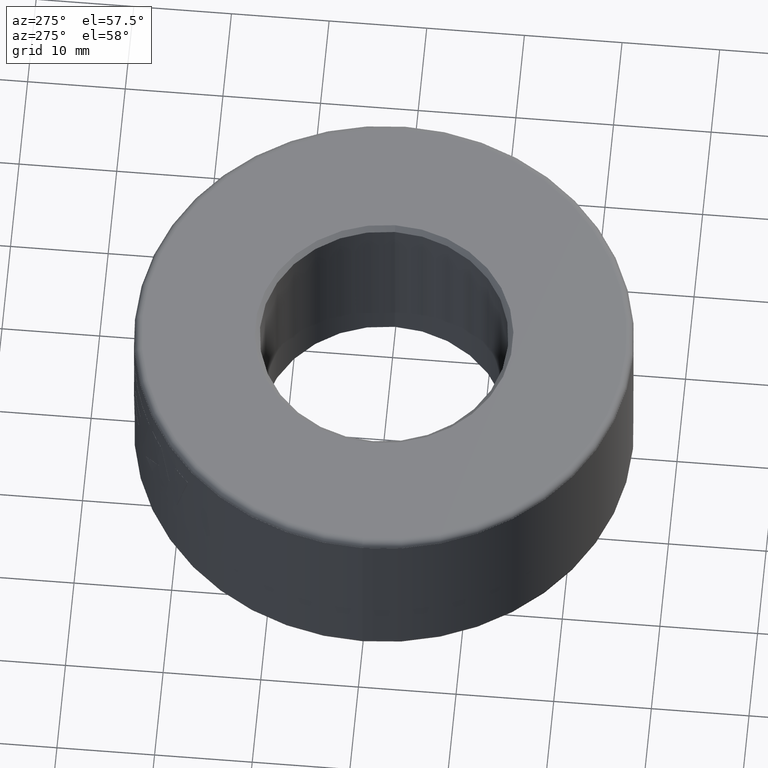
[diagram: clean part render]
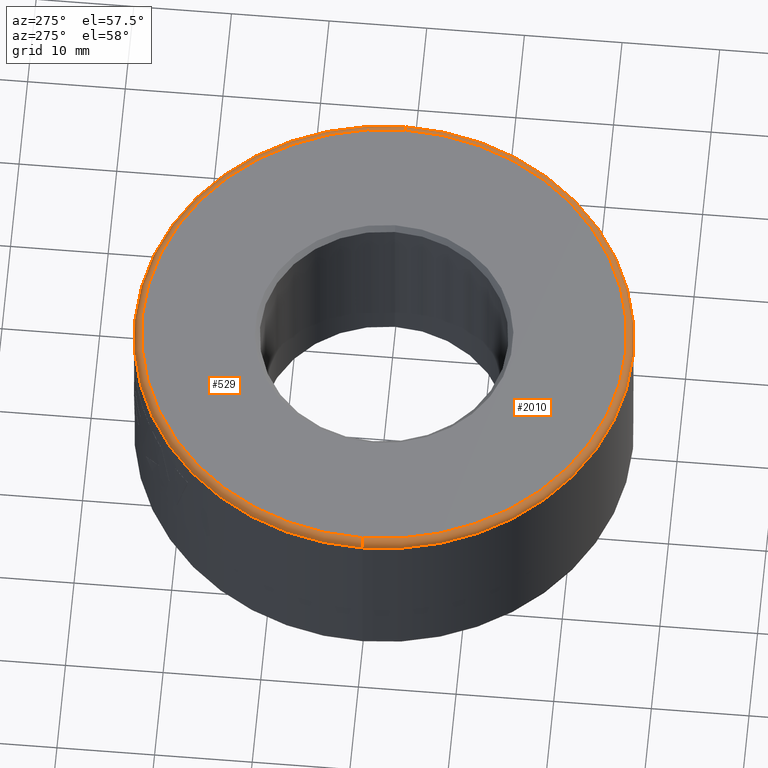
[diagram: same view with one multi-face feature highlighted, each face labeled with its STEP entity id]
A machine part, auxiliary view. The highlighted faces form ONE feature: a constant-radius fillet chain: 2 tangent blend faces with common blend radius 0.75 mm. The faces share edges in the B-rep.
Their STEP definitions:
[1] entity #529 (Torus):
#97 = AXIS2_PLACEMENT_3D ( 'NONE', #2151, #1485, #1093 ) ;
#201 = ORIENTED_EDGE ( 'NONE', *, *, #1541, .F. ) ;
#230 = ORIENTED_EDGE ( 'NONE', *, *, #1402, .F. ) ;
#299 = DIRECTION ( 'NONE',  ( 0.0000000000000000000, -1.000000000000000000, 0.0000000000000000000 ) ) ;
#529 = ADVANCED_FACE ( 'NONE', ( #2256 ), #2658, .T. ) ;
#733 = VERTEX_POINT ( 'NONE', #1944 ) ;
#757 = DIRECTION ( 'NONE',  ( 0.0000000000000000000, 0.0000000000000000000, 1.000000000000000000 ) ) ;
#828 = VERTEX_POINT ( 'NONE', #1593 ) ;
#864 = CIRCLE ( 'NONE', #1671, 0.7500000000000006700 ) ;
#957 = CARTESIAN_POINT ( 'NONE',  ( 0.0000000000000000000, 0.0000000000000000000, 8.749999999999998200 ) ) ;
#979 = DIRECTION ( 'NONE',  ( 1.000000000000000000, 0.0000000000000000000, 0.0000000000000000000 ) ) ;
#1093 = DIRECTION ( 'NONE',  ( 1.000000000000000000, 0.0000000000000000000, 0.0000000000000000000 ) ) ;
#1395 = AXIS2_PLACEMENT_3D ( 'NONE', #2606, #1542, #1963 ) ;
#1402 = EDGE_CURVE ( 'NONE', #2620, #1819, #2640, .T. ) ;
#1407 = ORIENTED_EDGE ( 'NONE', *, *, #2332, .F. ) ;
#1477 = DIRECTION ( 'NONE',  ( 1.224646799147353200E-016, 1.000000000000000000, -0.0000000000000000000 ) ) ;
#1485 = DIRECTION ( 'NONE',  ( 0.0000000000000000000, 0.0000000000000000000, 1.000000000000000000 ) ) ;
#1541 = EDGE_CURVE ( 'NONE', #733, #828, #2032, .T. ) ;
#1542 = DIRECTION ( 'NONE',  ( -0.0000000000000000000, -0.0000000000000000000, -1.000000000000000000 ) ) ;
#1588 = CARTESIAN_POINT ( 'NONE',  ( 24.74999999999999600, 0.0000000000000000000, 8.749999999999998200 ) ) ;
#1593 = CARTESIAN_POINT ( 'NONE',  ( 25.50000000000000000, 0.0000000000000000000, 8.749999999999998200 ) ) ;
#1634 = CARTESIAN_POINT ( 'NONE',  ( 24.74999999999999600, 0.0000000000000000000, 9.500000000000000000 ) ) ;
#1671 = AXIS2_PLACEMENT_3D ( 'NONE', #1588, #299, #2049 ) ;
#1819 = VERTEX_POINT ( 'NONE', #2537 ) ;
#1849 = CARTESIAN_POINT ( 'NONE',  ( -24.74999999999999600, 3.031000827889698900E-015, 8.749999999999998200 ) ) ;
#1944 = CARTESIAN_POINT ( 'NONE',  ( -25.50000000000000000, 3.122849337825750600E-015, 8.749999999999998200 ) ) ;
#1963 = DIRECTION ( 'NONE',  ( 1.000000000000000000, 0.0000000000000000000, 0.0000000000000000000 ) ) ;
#1992 = DIRECTION ( 'NONE',  ( -1.000000000000000000, 1.224646799147354400E-016, 0.0000000000000000000 ) ) ;
#2032 = CIRCLE ( 'NONE', #1395, 25.50000000000000000 ) ;
#2049 = DIRECTION ( 'NONE',  ( 0.0000000000000000000, 0.0000000000000000000, -1.000000000000000000 ) ) ;
#2151 = CARTESIAN_POINT ( 'NONE',  ( 0.0000000000000000000, 0.0000000000000000000, 9.500000000000000000 ) ) ;
#2213 = EDGE_CURVE ( 'NONE', #733, #1819, #2638, .T. ) ;
#2256 = FACE_OUTER_BOUND ( 'NONE', #2543, .T. ) ;
#2332 = EDGE_CURVE ( 'NONE', #828, #2620, #864, .T. ) ;
#2372 = AXIS2_PLACEMENT_3D ( 'NONE', #957, #757, #979 ) ;
#2537 = CARTESIAN_POINT ( 'NONE',  ( -24.74999999999999600, 3.076925082857724500E-015, 9.500000000000000000 ) ) ;
#2543 = EDGE_LOOP ( 'NONE', ( #201, #2769, #230, #1407 ) ) ;
#2606 = CARTESIAN_POINT ( 'NONE',  ( 0.0000000000000000000, 0.0000000000000000000, 8.749999999999998200 ) ) ;
#2620 = VERTEX_POINT ( 'NONE', #1634 ) ;
#2638 = CIRCLE ( 'NONE', #2725, 0.7500000000000006700 ) ;
#2640 = CIRCLE ( 'NONE', #97, 24.74999999999999600 ) ;
#2658 = TOROIDAL_SURFACE ( 'NONE', #2372, 24.74999999999999600, 0.7500000000000000000 ) ;
#2725 = AXIS2_PLACEMENT_3D ( 'NONE', #1849, #1477, #1992 ) ;
#2769 = ORIENTED_EDGE ( 'NONE', *, *, #2213, .T. ) ;
[2] entity #2010 (Torus):
#299 = DIRECTION ( 'NONE',  ( 0.0000000000000000000, -1.000000000000000000, 0.0000000000000000000 ) ) ;
#733 = VERTEX_POINT ( 'NONE', #1944 ) ;
#792 = DIRECTION ( 'NONE',  ( -0.0000000000000000000, -0.0000000000000000000, -1.000000000000000000 ) ) ;
#828 = VERTEX_POINT ( 'NONE', #1593 ) ;
#836 = CIRCLE ( 'NONE', #1297, 25.50000000000000000 ) ;
#864 = CIRCLE ( 'NONE', #1671, 0.7500000000000006700 ) ;
#891 = TOROIDAL_SURFACE ( 'NONE', #1416, 24.74999999999999600, 0.7500000000000000000 ) ;
#949 = EDGE_LOOP ( 'NONE', ( #1364, #1076, #1224, #2400 ) ) ;
#971 = CARTESIAN_POINT ( 'NONE',  ( 0.0000000000000000000, 0.0000000000000000000, 9.500000000000000000 ) ) ;
#1076 = ORIENTED_EDGE ( 'NONE', *, *, #1817, .F. ) ;
#1095 = FACE_OUTER_BOUND ( 'NONE', #949, .T. ) ;
#1124 = CIRCLE ( 'NONE', #1141, 24.74999999999999600 ) ;
#1141 = AXIS2_PLACEMENT_3D ( 'NONE', #971, #1418, #1175 ) ;
#1175 = DIRECTION ( 'NONE',  ( 1.000000000000000000, 0.0000000000000000000, 0.0000000000000000000 ) ) ;
#1198 = EDGE_CURVE ( 'NONE', #1819, #2620, #1124, .T. ) ;
#1224 = ORIENTED_EDGE ( 'NONE', *, *, #2332, .T. ) ;
#1297 = AXIS2_PLACEMENT_3D ( 'NONE', #1459, #792, #2068 ) ;
#1364 = ORIENTED_EDGE ( 'NONE', *, *, #2213, .F. ) ;
#1416 = AXIS2_PLACEMENT_3D ( 'NONE', #2363, #2556, #2216 ) ;
#1418 = DIRECTION ( 'NONE',  ( 0.0000000000000000000, 0.0000000000000000000, 1.000000000000000000 ) ) ;
#1459 = CARTESIAN_POINT ( 'NONE',  ( 0.0000000000000000000, 0.0000000000000000000, 8.749999999999998200 ) ) ;
#1477 = DIRECTION ( 'NONE',  ( 1.224646799147353200E-016, 1.000000000000000000, -0.0000000000000000000 ) ) ;
#1588 = CARTESIAN_POINT ( 'NONE',  ( 24.74999999999999600, 0.0000000000000000000, 8.749999999999998200 ) ) ;
#1593 = CARTESIAN_POINT ( 'NONE',  ( 25.50000000000000000, 0.0000000000000000000, 8.749999999999998200 ) ) ;
#1634 = CARTESIAN_POINT ( 'NONE',  ( 24.74999999999999600, 0.0000000000000000000, 9.500000000000000000 ) ) ;
#1671 = AXIS2_PLACEMENT_3D ( 'NONE', #1588, #299, #2049 ) ;
#1817 = EDGE_CURVE ( 'NONE', #828, #733, #836, .T. ) ;
#1819 = VERTEX_POINT ( 'NONE', #2537 ) ;
#1849 = CARTESIAN_POINT ( 'NONE',  ( -24.74999999999999600, 3.031000827889698900E-015, 8.749999999999998200 ) ) ;
#1944 = CARTESIAN_POINT ( 'NONE',  ( -25.50000000000000000, 3.122849337825750600E-015, 8.749999999999998200 ) ) ;
#1992 = DIRECTION ( 'NONE',  ( -1.000000000000000000, 1.224646799147354400E-016, 0.0000000000000000000 ) ) ;
#2010 = ADVANCED_FACE ( 'NONE', ( #1095 ), #891, .T. ) ;
#2049 = DIRECTION ( 'NONE',  ( 0.0000000000000000000, 0.0000000000000000000, -1.000000000000000000 ) ) ;
#2068 = DIRECTION ( 'NONE',  ( 1.000000000000000000, 0.0000000000000000000, 0.0000000000000000000 ) ) ;
#2213 = EDGE_CURVE ( 'NONE', #733, #1819, #2638, .T. ) ;
#2216 = DIRECTION ( 'NONE',  ( 1.000000000000000000, 0.0000000000000000000, 0.0000000000000000000 ) ) ;
#2332 = EDGE_CURVE ( 'NONE', #828, #2620, #864, .T. ) ;
#2363 = CARTESIAN_POINT ( 'NONE',  ( 0.0000000000000000000, 0.0000000000000000000, 8.749999999999998200 ) ) ;
#2400 = ORIENTED_EDGE ( 'NONE', *, *, #1198, .F. ) ;
#2537 = CARTESIAN_POINT ( 'NONE',  ( -24.74999999999999600, 3.076925082857724500E-015, 9.500000000000000000 ) ) ;
#2556 = DIRECTION ( 'NONE',  ( 0.0000000000000000000, 0.0000000000000000000, 1.000000000000000000 ) ) ;
#2620 = VERTEX_POINT ( 'NONE', #1634 ) ;
#2638 = CIRCLE ( 'NONE', #2725, 0.7500000000000006700 ) ;
#2725 = AXIS2_PLACEMENT_3D ( 'NONE', #1849, #1477, #1992 ) ;